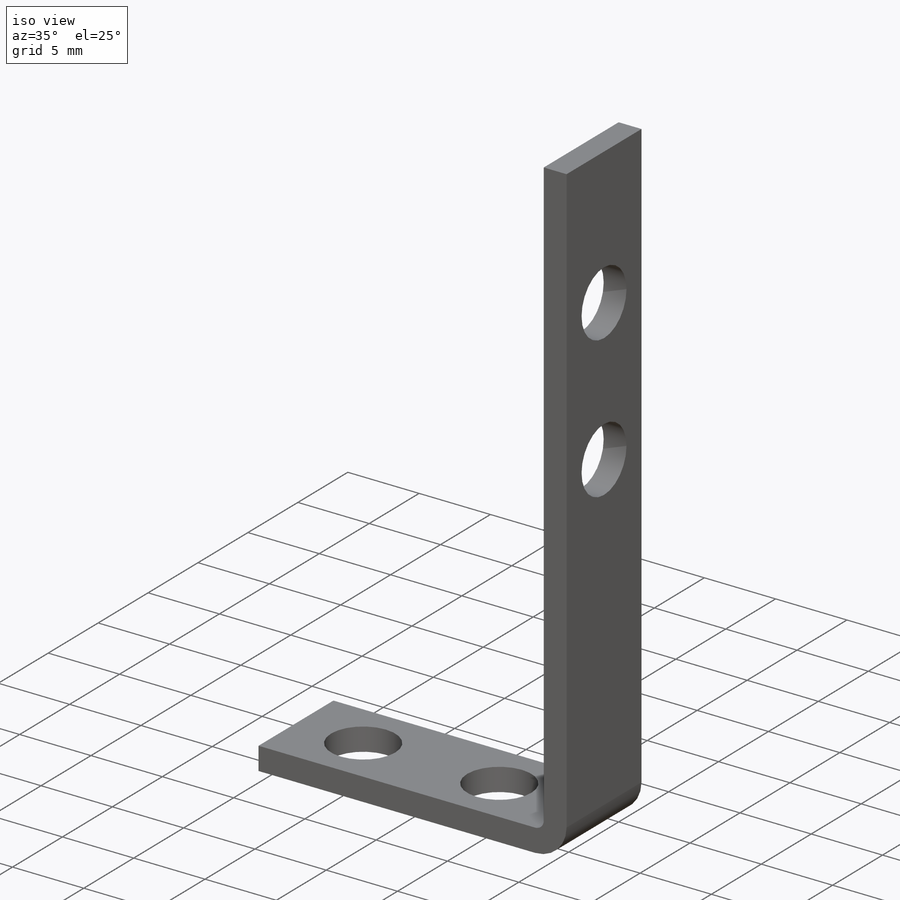
[diagram: iso view]
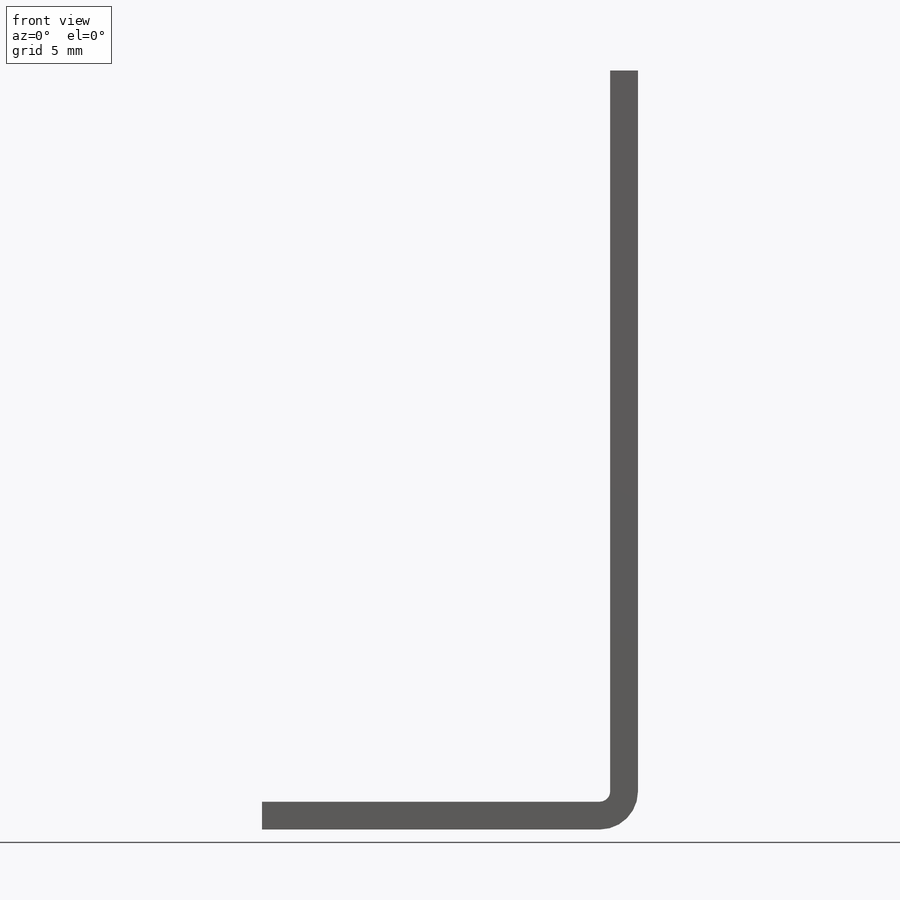
[diagram: front view]
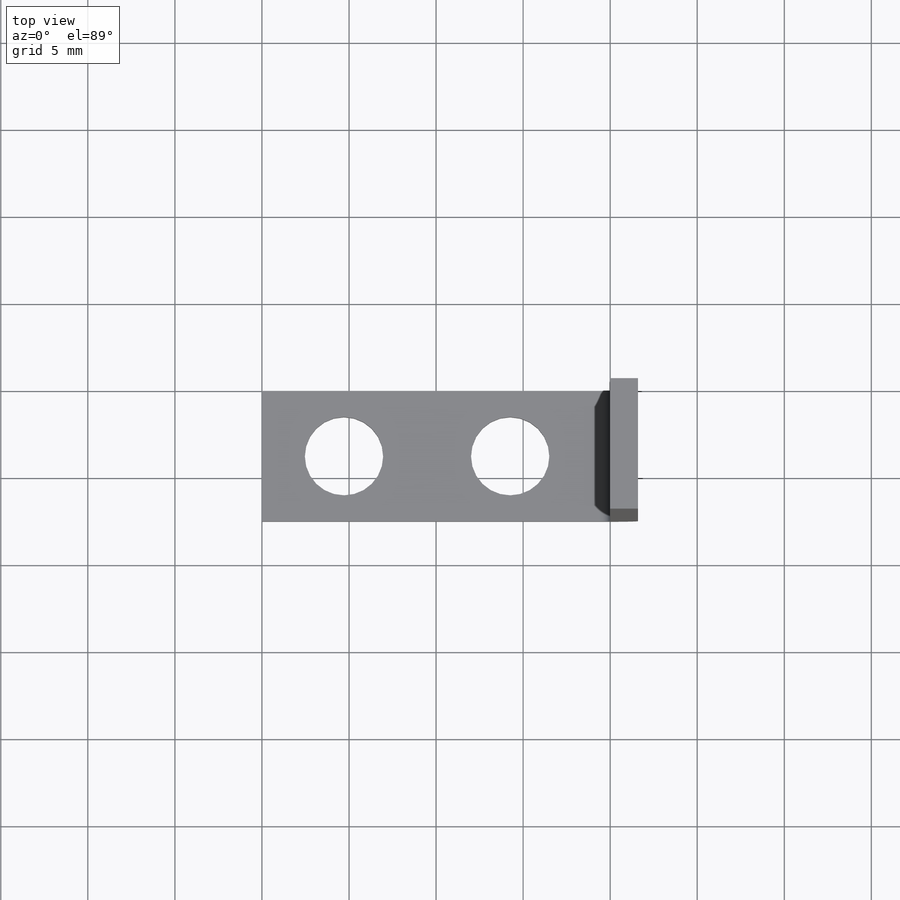
[diagram: top view]
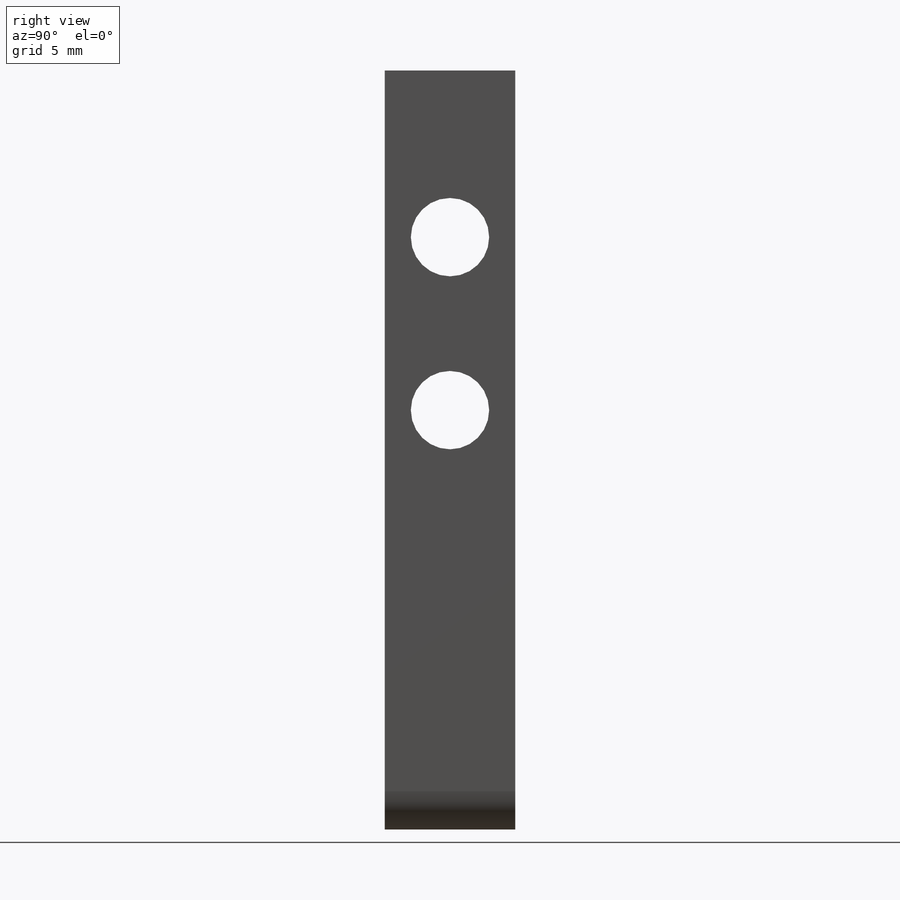
[diagram: right view]
SOLIDWORKS PART (.sldprt)
format: sldprt  version: not decoded by parser v0  size: 355,328 bytes
history: native  units: mm
features: sketch x12, sheet_metal_op x4, cut_extrude x2, material x1 + 5 further entries (+12 scaffold rows collapsed; 1 parser-record rows omitted)
feature tree (37):
  scaffold x12  (default folders/planes/origin — collapsed)
  material  "Material <not specified>"
  sketch  "Sketch1"  dims[c1.D1=42.0mm c1.D2=20.0mm c2.D1=0.6mm c2.D2=0.5 c2.D3=0.0mm c2.D6=500.0mm]
  sheet_metal_op  "Base-Flange1"
  sketch  "Sketch6"  dims[D1=29.06mm]
  sketch  "Sketch7"  dims[D1=4.5mm D3=4.5mm D2=4.965mm D4=4.97mm]
  cut_extrude  "Cut-Extrude1"  Depth=10mm
  sketch  "Sketch8"  dims[D2=4.5mm D3=4.5mm D1=3.75mm]
  cut_extrude  "Cut-Extrude2"  Depth=10mm
  sketch  "Bend-Lines1"
  sketch  "Bounding-Box1"
  sheet_metal_op  "Sheet-Metal(1)"
  "Flat-Pattern(1)"
  sketch  "Bend-Lines2"
  sketch  "Bounding-Box2"
  parser-record x1  (decoder bookkeeping rows leaked as tree rows — omitted from the tree; the rows remain in map.json)
  sheet_metal_op  "Sheet-Metal(2)"
  "Flat-Pattern(1)"
  sketch  "Bend-Lines2"
  sketch  "Bounding-Box2"
  "Flatten-<BaseBend1>1"
  sheet_metal_op  "Sheet-Metal(3)"
  "Flat-Pattern(1)"
  sketch  "Bend-Lines2"
  sketch  "Bounding-Box2"
  "Flatten-<BaseBend1>1"
decode coverage: 6 of 18 modeling features carry decoded parameters; 5 rows unclassified (native names shown)
note: suppression state not decoded; provenance and decode notes live in map.json
